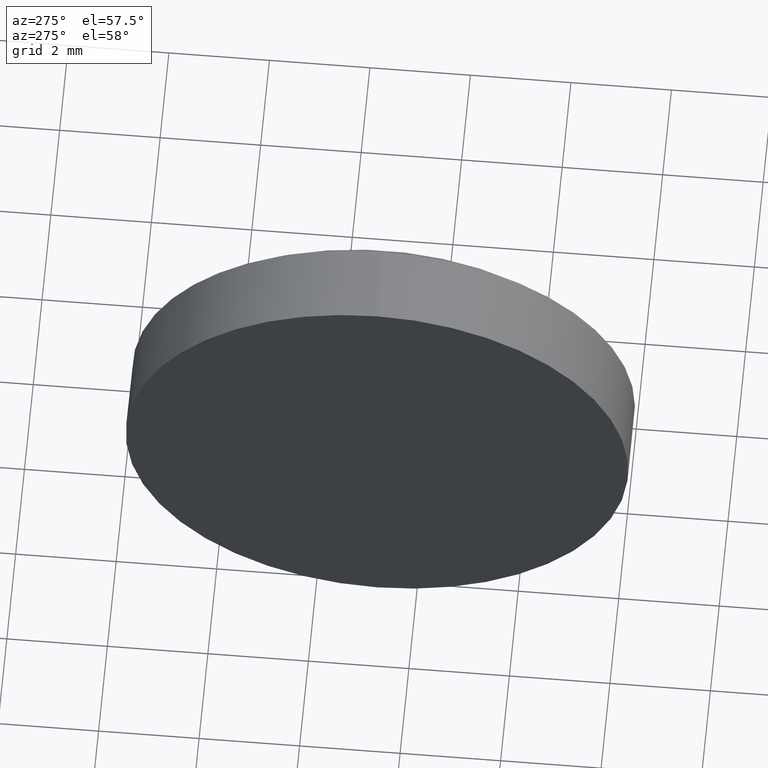
[diagram: clean part render]
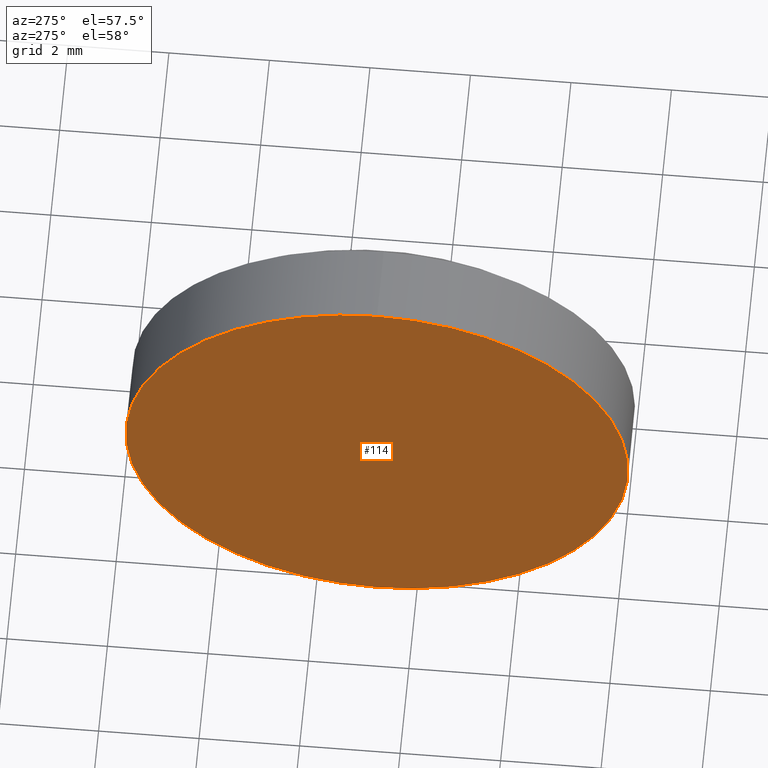
[diagram: same view with one face highlighted and labeled with its STEP entity id]
A machine part, auxiliary view. The second image highlights one B-rep face of the part: STEP entity #114.
In plain terms, the highlighted planar face has unit normal (1, 0, 0).
Its self-contained STEP definition (entity closure, byte-faithful):
#5 = DIRECTION ( 'NONE',  ( 0.0000000000000000000, 0.0000000000000000000, 1.000000000000000000 ) ) ;
#26 = CARTESIAN_POINT ( 'NONE',  ( 553.7079394579385500, 146.7847069453768000, 5.000000000000004400 ) ) ;
#34 = CARTESIAN_POINT ( 'NONE',  ( 553.7079394579385500, 146.7847069453768000, 0.0000000000000000000 ) ) ;
#46 = AXIS2_PLACEMENT_3D ( 'NONE', #138, #156, #5 ) ;
#48 = CIRCLE ( 'NONE', #46, 5.000000000000004400 ) ;
#60 = VERTEX_POINT ( 'NONE', #99 ) ;
#73 = VERTEX_POINT ( 'NONE', #26 ) ;
#75 = PLANE ( 'NONE',  #90 ) ;
#79 = DIRECTION ( 'NONE',  ( 0.0000000000000000000, 0.0000000000000000000, 1.000000000000000000 ) ) ;
#90 = AXIS2_PLACEMENT_3D ( 'NONE', #118, #128, #142 ) ;
#99 = CARTESIAN_POINT ( 'NONE',  ( 553.7079394579385500, 146.7847069453768000, -5.000000000000004400 ) ) ;
#101 = DIRECTION ( 'NONE',  ( -1.000000000000000000, -0.0000000000000000000, -0.0000000000000000000 ) ) ;
#113 = EDGE_LOOP ( 'NONE', ( #184, #175 ) ) ;
#114 = ADVANCED_FACE ( 'NONE', ( #165 ), #75, .F. ) ;
#115 = CIRCLE ( 'NONE', #122, 5.000000000000004400 ) ;
#118 = CARTESIAN_POINT ( 'NONE',  ( 553.7079394579385500, 146.7847069453768000, 0.0000000000000000000 ) ) ;
#122 = AXIS2_PLACEMENT_3D ( 'NONE', #34, #101, #79 ) ;
#128 = DIRECTION ( 'NONE',  ( 1.000000000000000000, 0.0000000000000000000, 0.0000000000000000000 ) ) ;
#138 = CARTESIAN_POINT ( 'NONE',  ( 553.7079394579385500, 146.7847069453768000, 0.0000000000000000000 ) ) ;
#141 = EDGE_CURVE ( 'NONE', #60, #73, #48, .T. ) ;
#142 = DIRECTION ( 'NONE',  ( 0.0000000000000000000, 0.0000000000000000000, -1.000000000000000000 ) ) ;
#152 = EDGE_CURVE ( 'NONE', #73, #60, #115, .T. ) ;
#156 = DIRECTION ( 'NONE',  ( -1.000000000000000000, -0.0000000000000000000, -0.0000000000000000000 ) ) ;
#165 = FACE_OUTER_BOUND ( 'NONE', #113, .T. ) ;
#175 = ORIENTED_EDGE ( 'NONE', *, *, #141, .T. ) ;
#184 = ORIENTED_EDGE ( 'NONE', *, *, #152, .T. ) ;